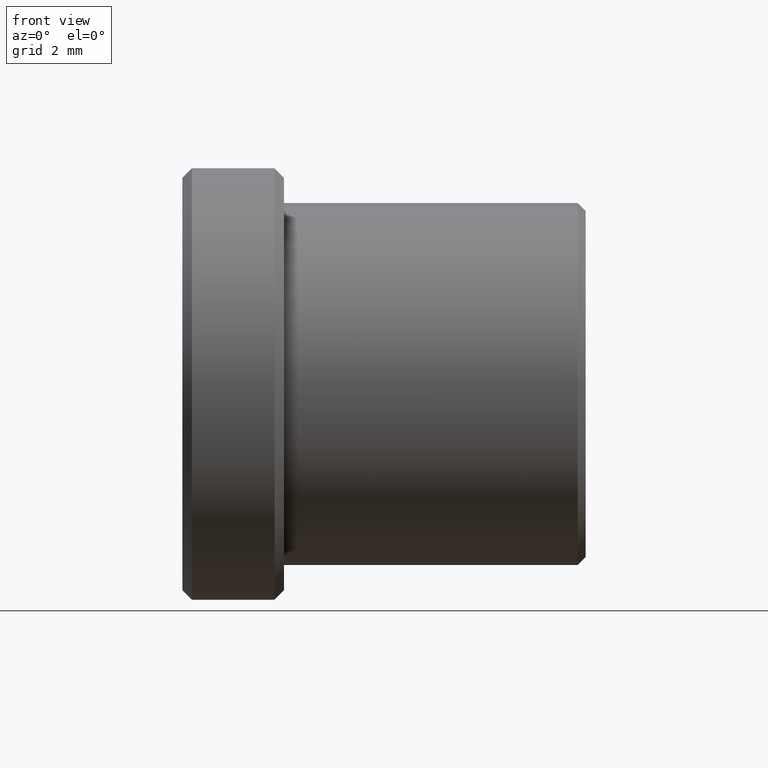
[diagram: clean part render]
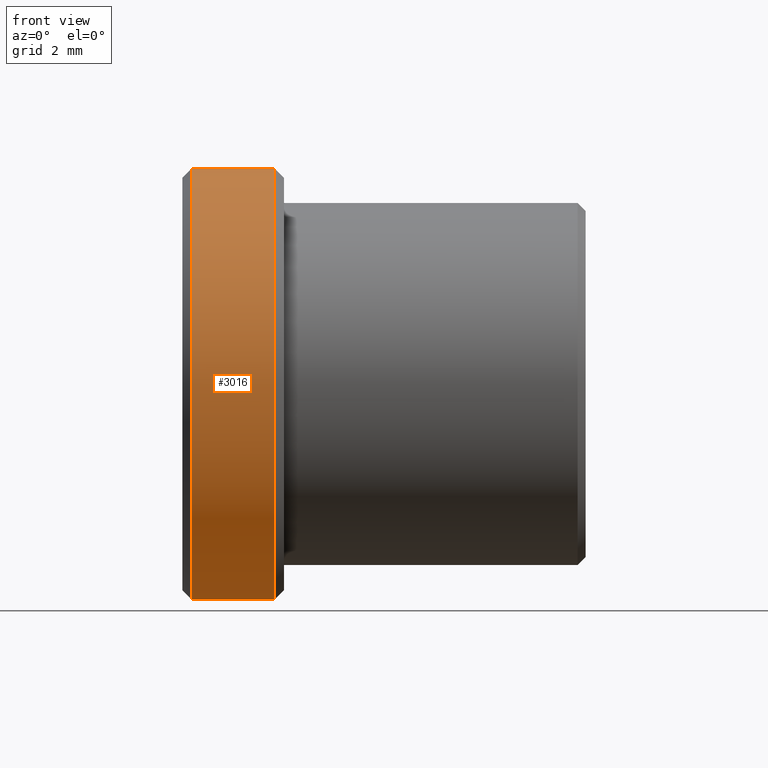
[diagram: same view with one face highlighted and labeled with its STEP entity id]
A machine part, front view. The second image highlights one B-rep face of the part: STEP entity #3016.
In plain terms, the highlighted cylindrical surface (partial cylindrical patch) has radius 6.795 mm, axis along (-1, -0, -0).
Its self-contained STEP definition (entity closure, byte-faithful):
#25 = DIRECTION ( 'NONE',  ( -1.000000000000000000, -0.000000000000000000, -0.000000000000000000 ) ) ;
#27 = DIRECTION ( 'NONE',  ( -1.000000000000000000, -0.000000000000000000, -0.000000000000000000 ) ) ;
#85 = ORIENTED_EDGE ( 'NONE', *, *, #943, .T. ) ;
#191 = CARTESIAN_POINT ( 'NONE',  ( 12.69999999999999929, 0.000000000000000000, 0.000000000000000000 ) ) ;
#255 = EDGE_CURVE ( 'NONE', #3044, #639, #1205, .T. ) ;
#324 = DIRECTION ( 'NONE',  ( -1.000000000000000000, 0.000000000000000000, 0.000000000000000000 ) ) ;
#458 = ORIENTED_EDGE ( 'NONE', *, *, #255, .F. ) ;
#535 = CARTESIAN_POINT ( 'NONE',  ( 2.899999999999996358, 0.000000000000000000, 6.794999999999999929 ) ) ;
#639 = VERTEX_POINT ( 'NONE', #2676 ) ;
#642 = ORIENTED_EDGE ( 'NONE', *, *, #2862, .T. ) ;
#656 = AXIS2_PLACEMENT_3D ( 'NONE', #2453, #324, #1275 ) ;
#677 = VERTEX_POINT ( 'NONE', #535 ) ;
#708 = VERTEX_POINT ( 'NONE', #2202 ) ;
#772 = AXIS2_PLACEMENT_3D ( 'NONE', #1292, #2901, #2686 ) ;
#773 = AXIS2_PLACEMENT_3D ( 'NONE', #191, #2092, #1794 ) ;
#837 = FACE_OUTER_BOUND ( 'NONE', #1559, .T. ) ;
#905 = CIRCLE ( 'NONE', #656, 6.794999999999999929 ) ;
#943 = EDGE_CURVE ( 'NONE', #708, #639, #2121, .T. ) ;
#1203 = CARTESIAN_POINT ( 'NONE',  ( 12.69999999999999929, 0.000000000000000000, 6.794999999999999929 ) ) ;
#1205 = LINE ( 'NONE', #1691, #1773 ) ;
#1275 = DIRECTION ( 'NONE',  ( 0.000000000000000000, 0.000000000000000000, -1.000000000000000000 ) ) ;
#1292 = CARTESIAN_POINT ( 'NONE',  ( 0.3000000000000016542, 0.000000000000000000, 0.000000000000000000 ) ) ;
#1559 = EDGE_LOOP ( 'NONE', ( #458, #2307, #642, #85 ) ) ;
#1587 = EDGE_CURVE ( 'NONE', #3044, #677, #905, .T. ) ;
#1691 = CARTESIAN_POINT ( 'NONE',  ( 12.69999999999999929, 8.321475000206265229E-16, -6.794999999999999929 ) ) ;
#1773 = VECTOR ( 'NONE', #27, 1000.000000000000000 ) ;
#1794 = DIRECTION ( 'NONE',  ( 0.000000000000000000, 0.000000000000000000, 1.000000000000000000 ) ) ;
#1979 = LINE ( 'NONE', #1203, #2460 ) ;
#2092 = DIRECTION ( 'NONE',  ( -1.000000000000000000, -0.000000000000000000, -0.000000000000000000 ) ) ;
#2121 = CIRCLE ( 'NONE', #772, 6.794999999999999929 ) ;
#2202 = CARTESIAN_POINT ( 'NONE',  ( 0.3000000000000016542, 0.000000000000000000, 6.794999999999999929 ) ) ;
#2307 = ORIENTED_EDGE ( 'NONE', *, *, #1587, .T. ) ;
#2453 = CARTESIAN_POINT ( 'NONE',  ( 2.899999999999996358, 0.000000000000000000, 0.000000000000000000 ) ) ;
#2460 = VECTOR ( 'NONE', #25, 1000.000000000000000 ) ;
#2563 = CYLINDRICAL_SURFACE ( 'NONE', #773, 6.794999999999999929 ) ;
#2625 = CARTESIAN_POINT ( 'NONE',  ( 2.899999999999996358, 8.321475000206265229E-16, -6.794999999999999929 ) ) ;
#2676 = CARTESIAN_POINT ( 'NONE',  ( 0.3000000000000016542, 8.321475000206265229E-16, -6.794999999999999929 ) ) ;
#2686 = DIRECTION ( 'NONE',  ( 0.000000000000000000, 0.000000000000000000, -1.000000000000000000 ) ) ;
#2862 = EDGE_CURVE ( 'NONE', #677, #708, #1979, .T. ) ;
#2901 = DIRECTION ( 'NONE',  ( 1.000000000000000000, -0.000000000000000000, -0.000000000000000000 ) ) ;
#3016 = ADVANCED_FACE ( 'NONE', ( #837 ), #2563, .T. ) ;
#3044 = VERTEX_POINT ( 'NONE', #2625 ) ;